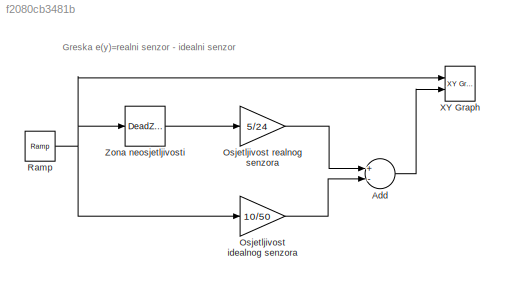
MODEL slx_f2080cb3481b
KIND model
CONFIG AbsTol = auto
CONFIG FixedStep = auto
CONFIG MaxStep = auto
CONFIG MinStep = auto
CONFIG RelTol = 1e-3
CONFIG SampleTimeConstraint = Unconstrained
CONFIG Solver = VariableStepAuto
CONFIG SolverMode = Auto
CONFIG SolverName = VariableStepAuto
CONFIG StartTime = 0.0
CONFIG StopTime = 100
BLOCK [Sum] Add
  InputSameDT = off
  Inputs = +-
  OutDataTypeStr = Inherit: Inherit via internal rule
  Ports = [2, 1]
  SaturateOnIntegerOverflow = off
BLOCK [Gain] Osjetljivost idealnog senzora
  Gain = 10/50
  OutDataTypeStr = Inherit: Inherit via internal rule
  ParamDataTypeStr = Inherit: Inherit via internal rule
  SaturateOnIntegerOverflow = off
BLOCK [Gain] Osjetljivost realnog senzora
  Gain = 5/24
  OutDataTypeStr = Inherit: Inherit via internal rule
  ParamDataTypeStr = Inherit: Inherit via internal rule
  SaturateOnIntegerOverflow = off
BLOCK [Reference] Ramp  REF=simulink/Sources/Ramp
  Ports = [0, 1]
  SourceBlock = simulink/Sources/Ramp
  SourceType = Ramp
BLOCK [Reference] XY Graph  REF=simulink/Sinks/XY Graph
  Ports = [2]
  SourceBlock = simulink/Sinks/XY Graph
  SourceType = XY scope.
BLOCK [DeadZone] Zona neosjetljivosti
  LowerValue = -2
  UpperValue = 2
ANNOTATION (root): Greska e(y)=realni senzor - idealni senzor
LINE Add:1 -> XY Graph:2
LINE Osjetljivost idealnog senzora:1 -> Add:2
LINE Osjetljivost realnog senzora:1 -> Add:1
NET Ramp:1 -> Osjetljivost idealnog senzora:1, XY Graph:1, Zona neosjetljivosti:1
LINE Zona neosjetljivosti:1 -> Osjetljivost realnog senzora:1
note: NET lines group one-source signal fan-out (src -> all destinations, sorted); 1:1 wires keep LINE
